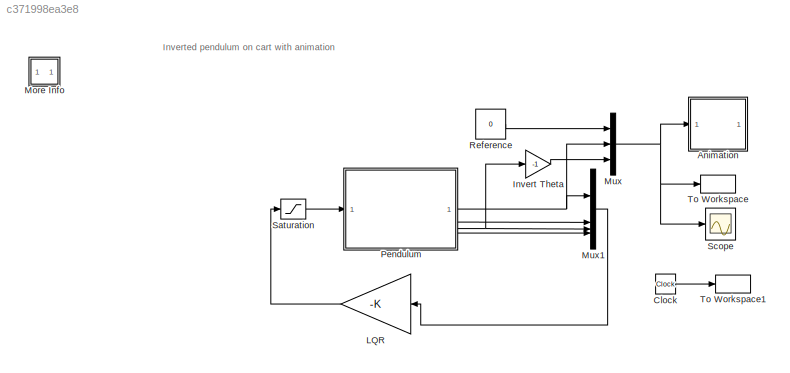
MODEL slx_c371998ea3e8
KIND model
CONFIG AbsTol = 1e-6
CONFIG EnableMultiTasking = off
CONFIG FixedStep = 0.02
CONFIG MaxStep = 0.02
CONFIG MinStep = auto
CONFIG RelTol = 1e-3
CONFIG SampleTimeConstraint = Unconstrained
CONFIG SolverName = FixedStepAuto
CONFIG StartTime = 0
CONFIG StopTime = 10
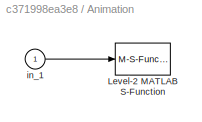
BLOCK [SubSystem] Animation
BLOCK [M-S-Function] Animation/Level-2 MATLAB S-Function
  FunctionName = pendan
  Parameters = RefBlock
BLOCK [Inport] Animation/in_1
BLOCK [Clock] Clock
BLOCK [Gain] Invert Theta
  Gain = -1
BLOCK [Gain] LQR
  Gain = -K
  Multiplication = Matrix(K*u)
BLOCK [SubSystem] More Info
  OpenFcn = showExample('simulink_general/penddemoExample')
BLOCK [Mux] Mux
  DisplayOption = bar
  Inputs = 3
BLOCK [Mux] Mux1
  DisplayOption = bar
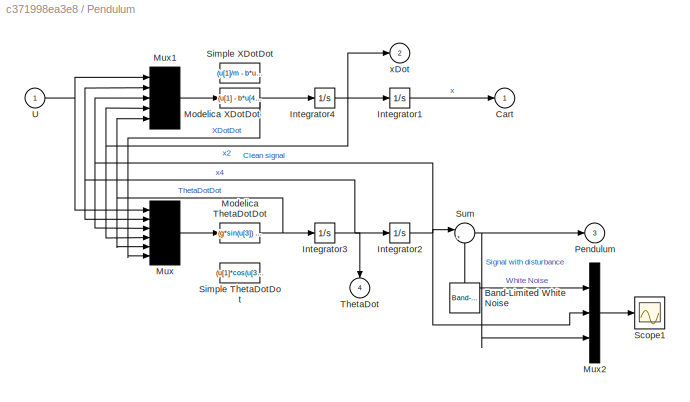
BLOCK [SubSystem] Pendulum
BLOCK [Reference] Pendulum/Band-Limited White Noise  REF=simulink/Sources/Band-Limited
White Noise
  NameLocation = right
  SourceBlock = simulink/Sources/Band-Limited\nWhite Noise
  SourceType = Band-Limited White Noise.
BLOCK [Outport] Pendulum/Cart
  InitialOutput = 0
  Unit = m
  VectorParamsAs1DForOutWhenUnconnected = off
BLOCK [Integrator] Pendulum/Integrator1
  ContinuousStateAttributes = 'CartPosition'
  InitialCondition = 1.2
BLOCK [Integrator] Pendulum/Integrator2
  ContinuousStateAttributes = 'PendulumAngle'
  InitialCondition = .27
BLOCK [Integrator] Pendulum/Integrator3
  ContinuousStateAttributes = 'PendulumAngularVelocity'
  InitialCondition = .5
BLOCK [Integrator] Pendulum/Integrator4
  ContinuousStateAttributes = 'CartVelocity'
BLOCK [Fcn] Pendulum/Modelica ThetaDotDot
  Expr = (g*sin(u[3]) + cos(u[3])*u[6])/l
BLOCK [Fcn] Pendulum/Modelica XDotDot
  Expr = (u[1] - b*u[4] + l*m*(cos(u[3])*u[5] - sin(u[3])*power(u[2],2)))/(Mcart+m)
BLOCK [Mux] Pendulum/Mux
  Inputs = 6
BLOCK [Mux] Pendulum/Mux1
  Inputs = 5
BLOCK [Mux] Pendulum/Mux2
  DisplayOption = bar
  Inputs = 3
BLOCK [Outport] Pendulum/Pendulum
  InitialOutput = 0
  Port = 3
  Unit = rad
  VectorParamsAs1DForOutWhenUnconnected = off
BLOCK [Scope] Pendulum/Scope1
  ActiveDisplayYMaximum = 0.20865363080540175
  ActiveDisplayYMinimum = -0.14664935477454569
  DataLoggingVariableName = ScopeData1
  Floating = off
  GraphicalSettings = {"Style":{"BackgroundColor":[0.12941176470588237,0.12941176470588237,0.12941176470588237],"AxesColor":[0.07058823529411765,0.07058823529411765,0.07058823529411765],"LabelsColor":[0.8509803921568627,0.8509803921568627,0.8509803921568627],"PreserveColors":false,"Visible":[true,true,true],"LineStyle":["-","-","-"],"LineWidth":[1.5,1.5,1.5],"BarWidth":[0.9,0.9,0.9],"LineColor":["auto","auto","auto"],"...<+2279ch>
  MultipleDisplayCache = [{"MaxYLimMag":0.20865363080540175,"MaxYLimReal":0.20865363080540175,"MinYLimMag":0,"MinYLimReal":-0.14664935477454569,"PlotAsMagnitudePhase":false,"ShowGrid":true,"ShowLegend":true,"Title":"%<SignalLabel>","YLabel":""}]
  NumInputPorts = 1
  ScopeFrameLocation = window
  ShowLegend = on
  WasSavedAsWebScope = on
  WindowPosition = [360.000000,150.000000,560.000000,420.000000,]
BLOCK [Fcn] Pendulum/Simple ThetaDotDot
  Commented = on
  Expr = (u[1]*cos(u[3])/m + Mcart*g*sin(u[3])/m - l*power(u[2],2)*sin(u[3])*cos(u[3]))/(l*(Mcart/m + power(sin(u[3]),2)))
BLOCK [Fcn] Pendulum/Simple XDotDot
  Commented = on
  Expr = (u[1]/m - b*u[4] + g*sin(u[3])*cos(u[3]) - l*power(u[2],2)*sin(u[3]))/(Mcart/m + power(sin(u[3]),2))
BLOCK [Sum] Pendulum/Sum
  Inputs = |++
BLOCK [Outport] Pendulum/ThetaDot
  InitialOutput = 0
  NameLocation = left
  Port = 4
  Unit = rad/s
  VectorParamsAs1DForOutWhenUnconnected = off
BLOCK [Inport] Pendulum/U
  Unit = N
BLOCK [Outport] Pendulum/xDot
  InitialOutput = 0
  Port = 2
  Unit = m/s
  VectorParamsAs1DForOutWhenUnconnected = off
BLOCK [Constant] Reference
  Value = 0
BLOCK [Saturate] Saturation
  LowerLimit = -10
  UpperLimit = 10
BLOCK [Scope] Scope
  ActiveDisplayYMaximum = 1.5815811233475343
  ActiveDisplayYMinimum = -2.23423011012781
  AxesScaling = Auto
  Floating = off
  GraphicalSettings = {"Style":{"BackgroundColor":[0.12941176470588237,0.12941176470588237,0.12941176470588237],"AxesColor":[0.07058823529411765,0.07058823529411765,0.07058823529411765],"LabelsColor":[0.8509803921568627,0.8509803921568627,0.8509803921568627],"PreserveColors":false,"Visible":[true,true,true],"LineStyle":["-","-","-"],"LineWidth":[1.5,1.5,1.5],"BarWidth":[0.9,0.9,0.9],"LineColor":["auto","auto","auto"],"...<+2394ch>
  LayoutDimensionsString = [1,1]
  MaximizeAxes = Auto
  MultipleDisplayCache = [{"MaxYLimMag":2.23423011012781,"MaxYLimReal":1.5815811233475343,"MinYLimMag":0,"MinYLimReal":-2.23423011012781,"PlotAsMagnitudePhase":false,"ShowGrid":true,"ShowLegend":true,"Title":"%<SignalLabel>","YLabel":"Refernce and Cart Position (m), Pendulum Position (rad)"}]
  NumInputPorts = 1
  ScopeFrameLocation = window
  ShowLegend = on
  ShowTimeAxisLabel = on
  TimeUnits = Seconds
  WasSavedAsWebScope = on
  WindowPosition = [1.000000,49.000000,1280.000000,649.000000,]
  YLabel = Refernce and Cart Position (m), Pendulum Position (rad)
BLOCK [ToWorkspace] To Workspace
  SampleTime = 0.1
  VariableName = y
BLOCK [ToWorkspace] To Workspace1
  SampleTime = 0.1
  VariableName = t
ANNOTATION (root): Inverted pendulum on cart with animation
LINE Animation/in_1:1 -> Animation/Level-2 MATLAB S-Function:1
LINE Clock:1 -> To Workspace1:1
LINE Invert Theta:1 -> Mux:3
LINE LQR:1 -> Saturation:1
LINE Mux1:1 -> LQR:1
NET Mux:1 -> Animation:1, Scope:1, To Workspace:1
NET Pendulum/Band-Limited White Noise:1 -> Pendulum/Mux2:1, Pendulum/Sum:2
LINE Pendulum/Integrator1:1 -> Pendulum/Cart:1
NET Pendulum/Integrator2:1 -> Pendulum/Mux1:3, Pendulum/Mux2:2, Pendulum/Mux:3, Pendulum/Sum:1
NET Pendulum/Integrator3:1 -> Pendulum/Integrator2:1, Pendulum/Mux1:2, Pendulum/Mux:2, Pendulum/ThetaDot:1
NET Pendulum/Integrator4:1 -> Pendulum/Integrator1:1, Pendulum/Mux1:4, Pendulum/Mux:4, Pendulum/xDot:1
NET Pendulum/Modelica ThetaDotDot:1 -> Pendulum/Integrator3:1, Pendulum/Mux1:5, Pendulum/Mux:5
NET Pendulum/Modelica XDotDot:1 -> Pendulum/Integrator4:1, Pendulum/Mux:6
LINE Pendulum/Mux1:1 -> Pendulum/Modelica XDotDot:1
LINE Pendulum/Mux2:1 -> Pendulum/Scope1:1
LINE Pendulum/Mux:1 -> Pendulum/Modelica ThetaDotDot:1
NET Pendulum/Sum:1 -> Pendulum/Mux2:3, Pendulum/Pendulum:1
NET Pendulum/U:1 -> Pendulum/Mux1:1, Pendulum/Mux:1
NET Pendulum:1 -> Mux1:1, Mux:2
LINE Pendulum:2 -> Mux1:2
NET Pendulum:3 -> Invert Theta:1, Mux1:3
LINE Pendulum:4 -> Mux1:4
LINE Reference:1 -> Mux:1
LINE Saturation:1 -> Pendulum:1
note: NET lines group one-source signal fan-out (src -> all destinations, sorted); 1:1 wires keep LINE
